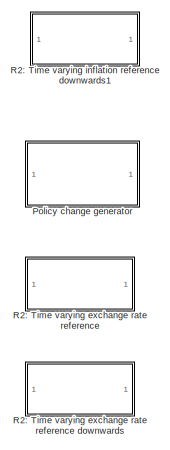
[diagram: root canvas - part 1/4, middle left region]
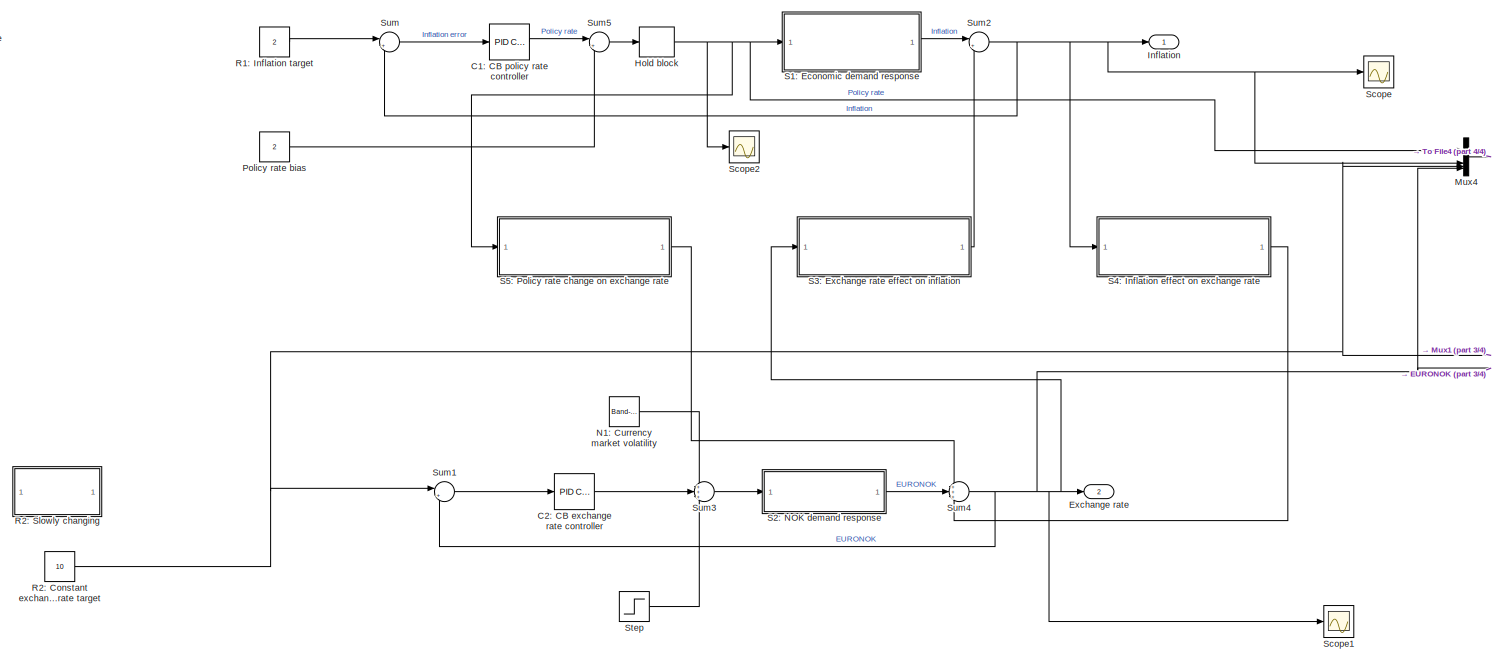
[diagram: root canvas - part 2/4, most of the canvas]
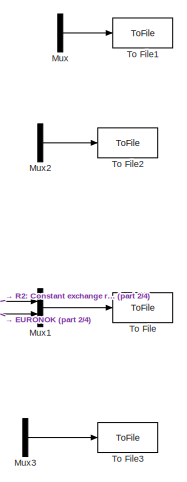
[diagram: root canvas - part 3/4, middle right region]
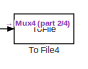
[diagram: root canvas - part 4/4, top right region]
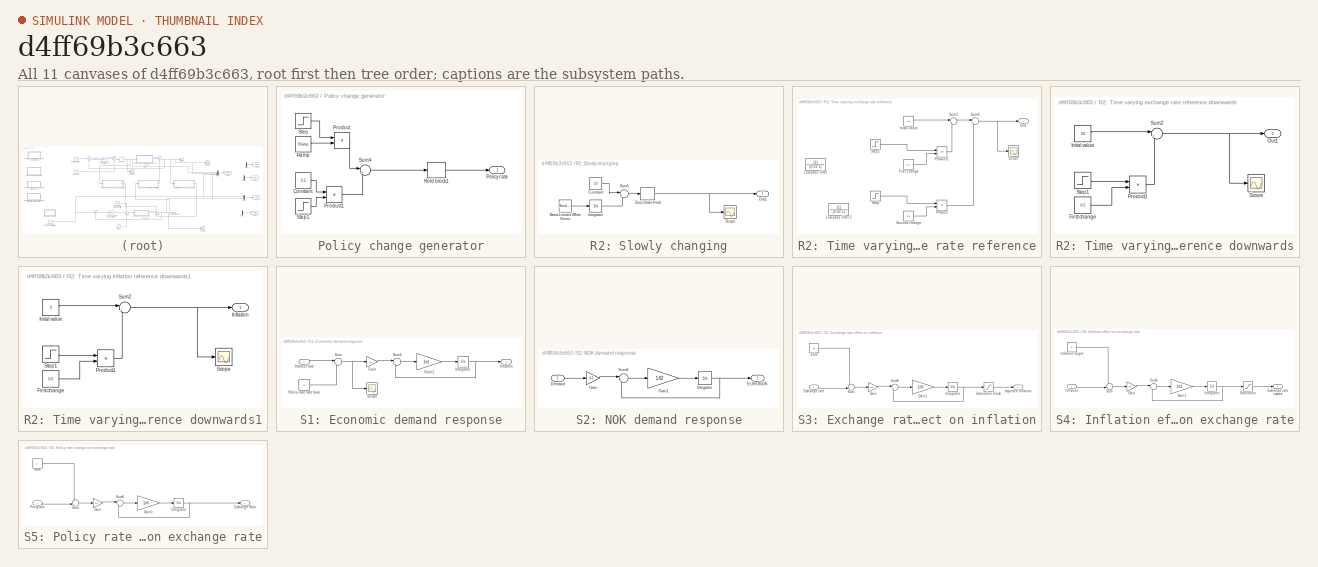
[diagram: thumbnail index - all 11 canvases of the model, root first then tree order]
MODEL slx_d4ff69b3c663
KIND model
CONFIG AbsTol = auto
CONFIG EnableMultiTasking = off
CONFIG FixedStep = auto
CONFIG MaxStep = auto
CONFIG MinStep = auto
CONFIG RelTol = 1e-3
CONFIG SampleTimeConstraint = Unconstrained
CONFIG SolverName = VariableStepAuto
CONFIG StartTime = 0.0
CONFIG StopTime = 1.04
BLOCK [Reference] C1: CB policy rate controller  REF=slpidlib/PID Controller
  LibrarySourceBlock = simulink/Continuous/PID Controller
  SourceBlock = slpidlib/PID Controller
  SourceType = PID 1dof
BLOCK [Reference] C2: CB exchange rate controller  REF=slpidlib/PID Controller
  LibrarySourceBlock = simulink/Continuous/PID Controller
  SourceBlock = slpidlib/PID Controller
  SourceType = PID 1dof
BLOCK [Outport] Exchange rate
  Port = 2
BLOCK [ZeroOrderHold] Hold block
  SampleTime = 0.06
BLOCK [Outport] Inflation
BLOCK [Mux] Mux
  DisplayOption = bar
  Inputs = 2
BLOCK [Mux] Mux1
  DisplayOption = bar
  Inputs = 2
BLOCK [Mux] Mux2
  DisplayOption = bar
  Inputs = 2
BLOCK [Mux] Mux3
  DisplayOption = bar
  Inputs = 2
BLOCK [Mux] Mux4
  DisplayOption = bar
BLOCK [Reference] N1: Currency market volatility  REF=simulink/Sources/Band-Limited
White Noise
  SourceBlock = simulink/Sources/Band-Limited\nWhite Noise
  SourceType = Band-Limited White Noise.
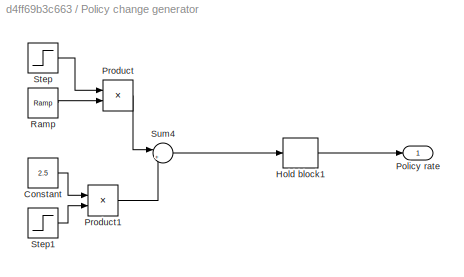
BLOCK [SubSystem] Policy change generator
BLOCK [Constant] Policy change generator/Constant
  Value = 2.5
BLOCK [ZeroOrderHold] Policy change generator/Hold block1
  SampleTime = 0.06
BLOCK [Outport] Policy change generator/Policy rate
BLOCK [Product] Policy change generator/Product
BLOCK [Product] Policy change generator/Product1
BLOCK [Reference] Policy change generator/Ramp  REF=simulink/Sources/Ramp
  SourceBlock = simulink/Sources/Ramp
  SourceType = Ramp
BLOCK [Step] Policy change generator/Step
  After = 0
  Before = 1
  SampleTime = 0
  Time = 0.65
BLOCK [Step] Policy change generator/Step1
  SampleTime = 0
  Time = 0.65
BLOCK [Sum] Policy change generator/Sum4
  Inputs = |++
BLOCK [Constant] Policy rate bias
  Value = 2
BLOCK [Constant] R1: Inflation target
  Value = 2
BLOCK [Constant] R2: Constant exchange rate target
  Value = 10
BLOCK [SubSystem] R2: Slowly changing
BLOCK [Reference] R2: Slowly changing/Band-Limited White Noise  REF=simulink/Sources/Band-Limited
White Noise
  SourceBlock = simulink/Sources/Band-Limited\nWhite Noise
  SourceType = Band-Limited White Noise.
BLOCK [Constant] R2: Slowly changing/Constant
  Value = 10
BLOCK [Integrator] R2: Slowly changing/Integrator
BLOCK [Outport] R2: Slowly changing/Out1
BLOCK [Scope] R2: Slowly changing/Scope
  Floating = off
  NumInputPorts = 1
  ScopeSpecificationString = Simulink.scopes.TimeScopeBlockCfg('CurrentConfiguration', extmgr.ConfigurationSet(extmgr.Configuration('Core','General UI',true),extmgr.Configuration('Core','Source UI',true),extmgr.Configuration('Sources','WiredSimulink',true,'DataLoggingVariableName','ScopeData4'),extmgr.Configuration('Visuals','Time Domain',true,'SerializedDisplays',{struct('MinYLimReal','9.9141','MaxYLimReal','10.27518','YLabe...<+1372ch>
BLOCK [Sum] R2: Slowly changing/Sum5
  Inputs = |++
BLOCK [ZeroOrderHold] R2: Slowly changing/Zero-Order Hold
  SampleTime = 0.01
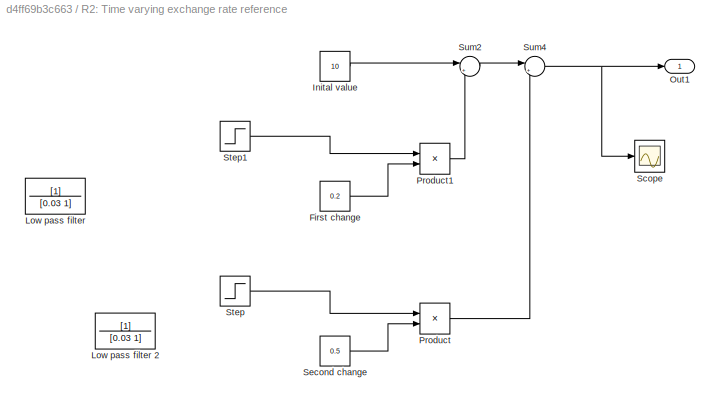
BLOCK [SubSystem] R2: Time varying exchange rate reference
BLOCK [SubSystem] R2: Time varying exchange rate reference downwards
BLOCK [Constant] R2: Time varying exchange rate reference downwards/First change
  Value = 0.5
BLOCK [Constant] R2: Time varying exchange rate reference downwards/Inital value
  Value = 10
BLOCK [Outport] R2: Time varying exchange rate reference downwards/Out1
BLOCK [Product] R2: Time varying exchange rate reference downwards/Product1
BLOCK [Scope] R2: Time varying exchange rate reference downwards/Scope
  Floating = off
  NumInputPorts = 1
  ScopeSpecificationString = Simulink.scopes.TimeScopeBlockCfg('CurrentConfiguration', extmgr.ConfigurationSet(extmgr.Configuration('Core','General UI',true),extmgr.Configuration('Core','Source UI',true),extmgr.Configuration('Sources','WiredSimulink',true,'DataLoggingVariableName','ScopeData1'),extmgr.Configuration('Visuals','Time Domain',true,'SerializedDisplays',{struct('MinYLimReal','9.9125','MaxYLimReal','10.7875','YLabel...<+1387ch>  <repeated x3 — deduplicated; at blocks: Scope>
BLOCK [Step] R2: Time varying exchange rate reference downwards/Step1
  SampleTime = 0
  Time = 0.40
BLOCK [Sum] R2: Time varying exchange rate reference downwards/Sum2
  Inputs = |++
BLOCK [Constant] R2: Time varying exchange rate reference/First change
  Value = 0.2
BLOCK [Constant] R2: Time varying exchange rate reference/Inital value
  Value = 10
BLOCK [TransferFcn] R2: Time varying exchange rate reference/Low pass filter
  Denominator = [0.03 1]
BLOCK [TransferFcn] R2: Time varying exchange rate reference/Low pass filter 2
  Denominator = [0.03 1]
BLOCK [Outport] R2: Time varying exchange rate reference/Out1
BLOCK [Product] R2: Time varying exchange rate reference/Product
BLOCK [Product] R2: Time varying exchange rate reference/Product1
BLOCK [Scope] R2: Time varying exchange rate reference/Scope
  Floating = off
  NumInputPorts = 1
BLOCK [Constant] R2: Time varying exchange rate reference/Second change
  Value = 0.5
BLOCK [Step] R2: Time varying exchange rate reference/Step
  SampleTime = 0
  Time = 0.70
BLOCK [Step] R2: Time varying exchange rate reference/Step1
  SampleTime = 0
  Time = 0.40
BLOCK [Sum] R2: Time varying exchange rate reference/Sum2
  Inputs = |++
BLOCK [Sum] R2: Time varying exchange rate reference/Sum4
  Inputs = |++
BLOCK [SubSystem] R2: Time varying inflation reference downwards1
BLOCK [Constant] R2: Time varying inflation reference downwards1/First change
  Value = 0.5
BLOCK [Outport] R2: Time varying inflation reference downwards1/Inflation
BLOCK [Constant] R2: Time varying inflation reference downwards1/Inital value
  Value = 2
BLOCK [Product] R2: Time varying inflation reference downwards1/Product1
BLOCK [Scope] R2: Time varying inflation reference downwards1/Scope
  Floating = off
  NumInputPorts = 1
BLOCK [Step] R2: Time varying inflation reference downwards1/Step1
  SampleTime = 0
  Time = 0.40
BLOCK [Sum] R2: Time varying inflation reference downwards1/Sum2
  Inputs = |++
BLOCK [SubSystem] S1: Economic demand response
BLOCK [Gain] S1: Economic demand response/Gain
  Gain = k1
BLOCK [Gain] S1: Economic demand response/Gain1
  Gain = 1/t1
BLOCK [Outport] S1: Economic demand response/Inflation
BLOCK [Integrator] S1: Economic demand response/Integrator
  InitialCondition = 2
BLOCK [Inport] S1: Economic demand response/Interest rate
BLOCK [Constant] S1: Economic demand response/Policy rate rate bias
  Value = 2
BLOCK [Scope] S1: Economic demand response/Scope
  Floating = off
  NumInputPorts = 1
  ScopeSpecificationString = Simulink.scopes.TimeScopeBlockCfg('CurrentConfiguration', extmgr.ConfigurationSet(extmgr.Configuration('Core','General UI',true),extmgr.Configuration('Core','Source UI',true),extmgr.Configuration('Sources','WiredSimulink',true,'DataLoggingVariableName','ScopeData3'),extmgr.Configuration('Visuals','Time Domain',true,'SerializedDisplays',{struct('MinYLimReal','-0.47589','MaxYLimReal','0.05288','YLab...<+1362ch>
BLOCK [Sum] S1: Economic demand response/Sum
  Inputs = |+-
BLOCK [Sum] S1: Economic demand response/Sum6
  Inputs = |+-
BLOCK [SubSystem] S2: NOK demand response
BLOCK [Inport] S2: NOK demand response/Demand
BLOCK [Outport] S2: NOK demand response/EURONOK
BLOCK [Gain] S2: NOK demand response/Gain
  Gain = k2
BLOCK [Gain] S2: NOK demand response/Gain1
  Gain = 1/t2
BLOCK [Integrator] S2: NOK demand response/Integrator
  InitialCondition = 10
BLOCK [Sum] S2: NOK demand response/Sum6
  Inputs = |+-
BLOCK [SubSystem] S3: Exchange rate effect on inflation
BLOCK [Inport] S3: Exchange rate effect on inflation/Exchange rate
BLOCK [Gain] S3: Exchange rate effect on inflation/Gain
  Gain = k3
BLOCK [Gain] S3: Exchange rate effect on inflation/Gain1
  Gain = 1/t3
BLOCK [Outport] S3: Exchange rate effect on inflation/Imported Inflation
BLOCK [Integrator] S3: Exchange rate effect on inflation/Integrator
BLOCK [Saturate] S3: Exchange rate effect on inflation/Saturation block
BLOCK [Sum] S3: Exchange rate effect on inflation/Sum
  Inputs = -+|
BLOCK [Sum] S3: Exchange rate effect on inflation/Sum6
  Inputs = |+-
BLOCK [Constant] S3: Exchange rate effect on inflation/ZIER
  Value = 10
BLOCK [SubSystem] S4: Inflation effect on exchange rate
BLOCK [Outport] S4: Inflation effect on exchange rate/Exchange rate impact
BLOCK [Gain] S4: Inflation effect on exchange rate/Gain
  Gain = k4
BLOCK [Gain] S4: Inflation effect on exchange rate/Gain1
  Gain = 1/t4
BLOCK [Inport] S4: Inflation effect on exchange rate/Inflation
BLOCK [Constant] S4: Inflation effect on exchange rate/Inflation target
  Value = 2
BLOCK [Integrator] S4: Inflation effect on exchange rate/Integrator
BLOCK [Saturate] S4: Inflation effect on exchange rate/Saturation
BLOCK [Sum] S4: Inflation effect on exchange rate/Sum
  Inputs = -+|
BLOCK [Sum] S4: Inflation effect on exchange rate/Sum6
  Inputs = |+-
BLOCK [SubSystem] S5: Policy rate change on exchange rate
BLOCK [Outport] S5: Policy rate change on exchange rate/Exchange Rate
BLOCK [Gain] S5: Policy rate change on exchange rate/Gain
  Gain = k5
BLOCK [Gain] S5: Policy rate change on exchange rate/Gain1
  Gain = 1/t5
BLOCK [Integrator] S5: Policy rate change on exchange rate/Integrator
BLOCK [Inport] S5: Policy rate change on exchange rate/Policy rate
BLOCK [Constant] S5: Policy rate change on exchange rate/RPR
  Value = 2
BLOCK [Sum] S5: Policy rate change on exchange rate/Sum
  Inputs = -+|
BLOCK [Sum] S5: Policy rate change on exchange rate/Sum6
  Inputs = |+-
BLOCK [Scope] Scope
  Floating = off
  NumInputPorts = 1
  ScopeSpecificationString = Simulink.scopes.TimeScopeBlockCfg('CurrentConfiguration', extmgr.ConfigurationSet(extmgr.Configuration('Core','General UI',true),extmgr.Configuration('Core','Source UI',true),extmgr.Configuration('Sources','WiredSimulink',true),extmgr.Configuration('Visuals','Time Domain',true,'SerializedDisplays',{struct('MinYLimReal','1.87712','MaxYLimReal','2.10089','YLabelReal','','MinYLimMag','1.87712','MaxYL...<+1327ch>
BLOCK [Scope] Scope1
  Floating = off
  NumInputPorts = 1
  ScopeSpecificationString = Simulink.scopes.TimeScopeBlockCfg('CurrentConfiguration', extmgr.ConfigurationSet(extmgr.Configuration('Core','General UI',true),extmgr.Configuration('Core','Source UI',true),extmgr.Configuration('Sources','WiredSimulink',true,'DataLoggingVariableName','ScopeData2'),extmgr.Configuration('Visuals','Time Domain',true,'SerializedDisplays',{struct('MinYLimReal','9.94423','MaxYLimReal','10.15468','YLab...<+1368ch>
BLOCK [Scope] Scope2
  Floating = off
  NumInputPorts = 1
  ScopeSpecificationString = Simulink.scopes.TimeScopeBlockCfg('CurrentConfiguration', extmgr.ConfigurationSet(extmgr.Configuration('Core','General UI',true),extmgr.Configuration('Core','Source UI',true),extmgr.Configuration('Sources','WiredSimulink',true,'DataLoggingVariableName','ScopeData5'),extmgr.Configuration('Visuals','Time Domain',true,'SerializedDisplays',{struct('MinYLimReal','1.52411','MaxYLimReal','2.05288','YLabe...<+1368ch>
BLOCK [Step] Step
  After = -10
  SampleTime = 0
  Time = 0.4
BLOCK [Sum] Sum
  Inputs = |+-
BLOCK [Sum] Sum1
  Inputs = |+-
BLOCK [Sum] Sum2
  Inputs = |++
BLOCK [Sum] Sum3
  Inputs = +++
  NameLocation = top
BLOCK [Sum] Sum4
  Inputs = +++
BLOCK [Sum] Sum5
  Inputs = |++
BLOCK [ToFile] To File
  Filename = EURONOK.mat
  MatrixName = ERData
BLOCK [ToFile] To File1
  Filename = inflation.mat
  MatrixName = inflationData
BLOCK [ToFile] To File2
  Filename = inflationexch.mat
  MatrixName = inflationData
BLOCK [ToFile] To File3
  Filename = policy.mat
  MatrixName = policyData
BLOCK [ToFile] To File4
  Filename = complete.mat
  MatrixName = completeData
LINE C1: CB policy rate controller:1 -> Sum5:1
LINE C2: CB exchange rate controller:1 -> Sum3:2
NET Hold block:1 -> Mux4:1, S1: Economic demand response:1, S5: Policy rate change on exchange rate:1, Scope2:1
LINE Mux1:1 -> To File:1
LINE Mux2:1 -> To File2:1
LINE Mux3:1 -> To File3:1
LINE Mux4:1 -> To File4:1
LINE Mux:1 -> To File1:1
LINE N1: Currency market volatility:1 -> Sum3:1
LINE Policy change generator/Constant:1 -> Policy change generator/Product1:1
LINE Policy change generator/Hold block1:1 -> Policy change generator/Policy rate:1
LINE Policy change generator/Product1:1 -> Policy change generator/Sum4:2
LINE Policy change generator/Product:1 -> Policy change generator/Sum4:1
LINE Policy change generator/Ramp:1 -> Policy change generator/Product:2
LINE Policy change generator/Step1:1 -> Policy change generator/Product1:2
LINE Policy change generator/Step:1 -> Policy change generator/Product:1
LINE Policy change generator/Sum4:1 -> Policy change generator/Hold block1:1
LINE Policy rate bias:1 -> Sum5:2
LINE R1: Inflation target:1 -> Sum:1
NET R2: Constant exchange rate target:1 -> Mux1:1, Mux4:3, Sum1:1
LINE R2: Slowly changing/Band-Limited White Noise:1 -> R2: Slowly changing/Integrator:1
LINE R2: Slowly changing/Constant:1 -> R2: Slowly changing/Sum5:1
LINE R2: Slowly changing/Integrator:1 -> R2: Slowly changing/Sum5:2
LINE R2: Slowly changing/Sum5:1 -> R2: Slowly changing/Zero-Order Hold:1
NET R2: Slowly changing/Zero-Order Hold:1 -> R2: Slowly changing/Out1:1, R2: Slowly changing/Scope:1
LINE R2: Time varying exchange rate reference downwards/First change:1 -> R2: Time varying exchange rate reference downwards/Product1:2
LINE R2: Time varying exchange rate reference downwards/Inital value:1 -> R2: Time varying exchange rate reference downwards/Sum2:1
LINE R2: Time varying exchange rate reference downwards/Product1:1 -> R2: Time varying exchange rate reference downwards/Sum2:2
LINE R2: Time varying exchange rate reference downwards/Step1:1 -> R2: Time varying exchange rate reference downwards/Product1:1
NET R2: Time varying exchange rate reference downwards/Sum2:1 -> R2: Time varying exchange rate reference downwards/Out1:1, R2: Time varying exchange rate reference downwards/Scope:1
LINE R2: Time varying exchange rate reference/First change:1 -> R2: Time varying exchange rate reference/Product1:2
LINE R2: Time varying exchange rate reference/Inital value:1 -> R2: Time varying exchange rate reference/Sum2:1
LINE R2: Time varying exchange rate reference/Product1:1 -> R2: Time varying exchange rate reference/Sum2:2
LINE R2: Time varying exchange rate reference/Product:1 -> R2: Time varying exchange rate reference/Sum4:2
LINE R2: Time varying exchange rate reference/Second change:1 -> R2: Time varying exchange rate reference/Product:2
LINE R2: Time varying exchange rate reference/Step1:1 -> R2: Time varying exchange rate reference/Product1:1
LINE R2: Time varying exchange rate reference/Step:1 -> R2: Time varying exchange rate reference/Product:1
LINE R2: Time varying exchange rate reference/Sum2:1 -> R2: Time varying exchange rate reference/Sum4:1
NET R2: Time varying exchange rate reference/Sum4:1 -> R2: Time varying exchange rate reference/Out1:1, R2: Time varying exchange rate reference/Scope:1
LINE R2: Time varying inflation reference downwards1/First change:1 -> R2: Time varying inflation reference downwards1/Product1:2
LINE R2: Time varying inflation reference downwards1/Inital value:1 -> R2: Time varying inflation reference downwards1/Sum2:1
LINE R2: Time varying inflation reference downwards1/Product1:1 -> R2: Time varying inflation reference downwards1/Sum2:2
LINE R2: Time varying inflation reference downwards1/Step1:1 -> R2: Time varying inflation reference downwards1/Product1:1
NET R2: Time varying inflation reference downwards1/Sum2:1 -> R2: Time varying inflation reference downwards1/Inflation:1, R2: Time varying inflation reference downwards1/Scope:1
LINE S1: Economic demand response/Gain1:1 -> S1: Economic demand response/Integrator:1
LINE S1: Economic demand response/Gain:1 -> S1: Economic demand response/Sum6:1
NET S1: Economic demand response/Integrator:1 -> S1: Economic demand response/Inflation:1, S1: Economic demand response/Sum6:2
LINE S1: Economic demand response/Interest rate:1 -> S1: Economic demand response/Sum:1
LINE S1: Economic demand response/Policy rate rate bias:1 -> S1: Economic demand response/Sum:2
LINE S1: Economic demand response/Sum6:1 -> S1: Economic demand response/Gain1:1
NET S1: Economic demand response/Sum:1 -> S1: Economic demand response/Gain:1, S1: Economic demand response/Scope:1
LINE S1: Economic demand response:1 -> Sum2:1
LINE S2: NOK demand response/Demand:1 -> S2: NOK demand response/Gain:1
LINE S2: NOK demand response/Gain1:1 -> S2: NOK demand response/Integrator:1
LINE S2: NOK demand response/Gain:1 -> S2: NOK demand response/Sum6:1
NET S2: NOK demand response/Integrator:1 -> S2: NOK demand response/EURONOK:1, S2: NOK demand response/Sum6:2
LINE S2: NOK demand response/Sum6:1 -> S2: NOK demand response/Gain1:1
LINE S2: NOK demand response:1 -> Sum4:2
LINE S3: Exchange rate effect on inflation/Exchange rate:1 -> S3: Exchange rate effect on inflation/Sum:2
LINE S3: Exchange rate effect on inflation/Gain1:1 -> S3: Exchange rate effect on inflation/Integrator:1
LINE S3: Exchange rate effect on inflation/Gain:1 -> S3: Exchange rate effect on inflation/Sum6:1
NET S3: Exchange rate effect on inflation/Integrator:1 -> S3: Exchange rate effect on inflation/Saturation block:1, S3: Exchange rate effect on inflation/Sum6:2
LINE S3: Exchange rate effect on inflation/Saturation block:1 -> S3: Exchange rate effect on inflation/Imported Inflation:1
LINE S3: Exchange rate effect on inflation/Sum6:1 -> S3: Exchange rate effect on inflation/Gain1:1
LINE S3: Exchange rate effect on inflation/Sum:1 -> S3: Exchange rate effect on inflation/Gain:1
LINE S3: Exchange rate effect on inflation/ZIER:1 -> S3: Exchange rate effect on inflation/Sum:1
LINE S3: Exchange rate effect on inflation:1 -> Sum2:2
LINE S4: Inflation effect on exchange rate/Gain1:1 -> S4: Inflation effect on exchange rate/Integrator:1
LINE S4: Inflation effect on exchange rate/Gain:1 -> S4: Inflation effect on exchange rate/Sum6:1
LINE S4: Inflation effect on exchange rate/Inflation target:1 -> S4: Inflation effect on exchange rate/Sum:1
LINE S4: Inflation effect on exchange rate/Inflation:1 -> S4: Inflation effect on exchange rate/Sum:2
NET S4: Inflation effect on exchange rate/Integrator:1 -> S4: Inflation effect on exchange rate/Saturation:1, S4: Inflation effect on exchange rate/Sum6:2
LINE S4: Inflation effect on exchange rate/Saturation:1 -> S4: Inflation effect on exchange rate/Exchange rate impact:1
LINE S4: Inflation effect on exchange rate/Sum6:1 -> S4: Inflation effect on exchange rate/Gain1:1
LINE S4: Inflation effect on exchange rate/Sum:1 -> S4: Inflation effect on exchange rate/Gain:1
LINE S4: Inflation effect on exchange rate:1 -> Sum4:3
LINE S5: Policy rate change on exchange rate/Gain1:1 -> S5: Policy rate change on exchange rate/Integrator:1
LINE S5: Policy rate change on exchange rate/Gain:1 -> S5: Policy rate change on exchange rate/Sum6:1
NET S5: Policy rate change on exchange rate/Integrator:1 -> S5: Policy rate change on exchange rate/Exchange Rate:1, S5: Policy rate change on exchange rate/Sum6:2
LINE S5: Policy rate change on exchange rate/Policy rate:1 -> S5: Policy rate change on exchange rate/Sum:2
LINE S5: Policy rate change on exchange rate/RPR:1 -> S5: Policy rate change on exchange rate/Sum:1
LINE S5: Policy rate change on exchange rate/Sum6:1 -> S5: Policy rate change on exchange rate/Gain1:1
LINE S5: Policy rate change on exchange rate/Sum:1 -> S5: Policy rate change on exchange rate/Gain:1
LINE S5: Policy rate change on exchange rate:1 -> Sum4:1
LINE Step:1 -> Sum3:3
LINE Sum1:1 -> C2: CB exchange rate controller:1
NET Sum2:1 -> Inflation:1, Mux4:2, S4: Inflation effect on exchange rate:1, Scope:1, Sum:2
LINE Sum3:1 -> S2: NOK demand response:1
NET Sum4:1 -> Exchange rate:1, Mux1:2, Mux4:4, S3: Exchange rate effect on inflation:1, Scope1:1, Sum1:2
LINE Sum5:1 -> Hold block:1
LINE Sum:1 -> C1: CB policy rate controller:1
note: NET lines group one-source signal fan-out (src -> all destinations, sorted); 1:1 wires keep LINE
